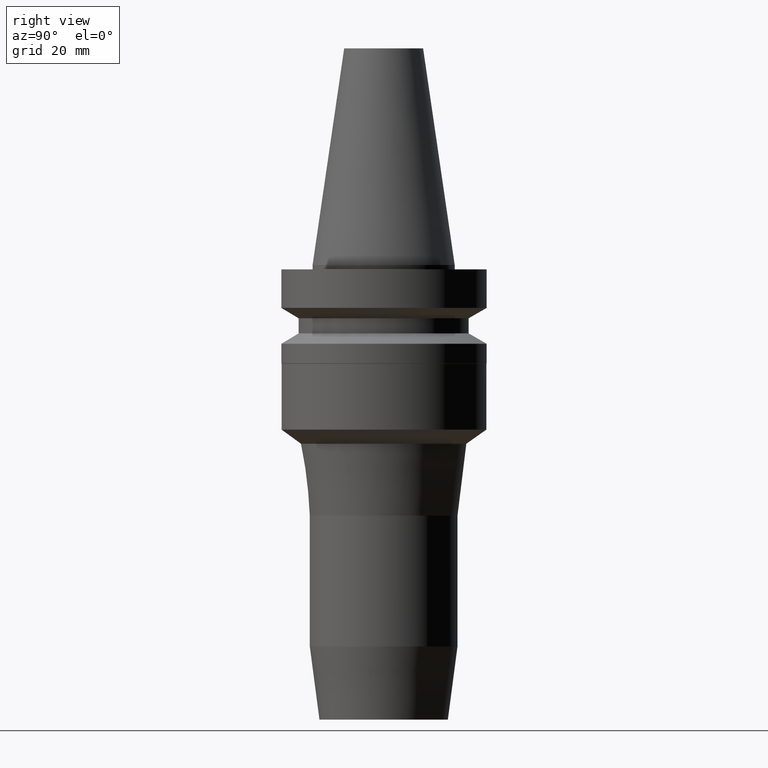
[diagram: clean part render]
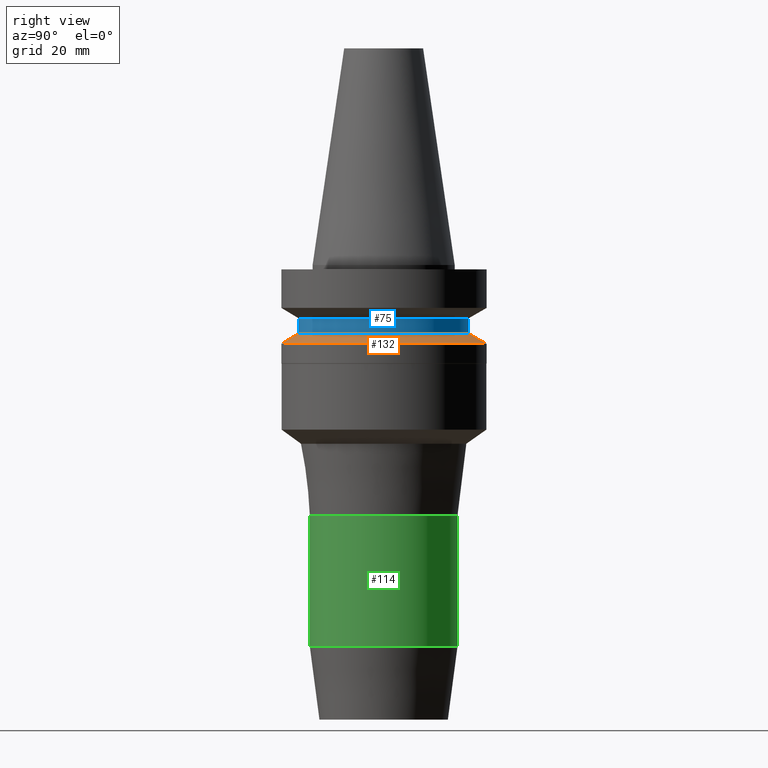
[diagram: same view with three faces highlighted in distinct colors, each labeled with its STEP entity id]
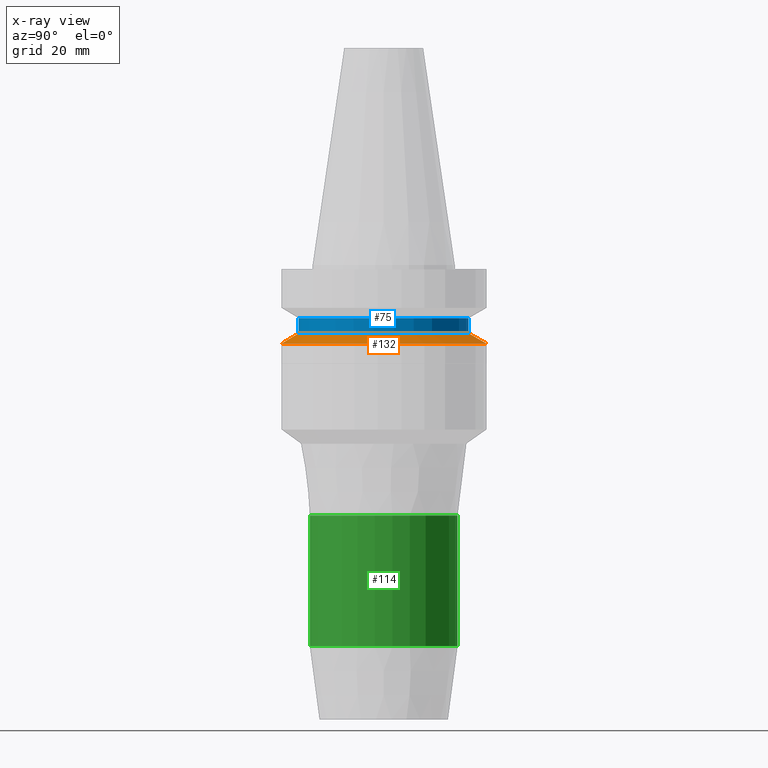
[diagram: x-ray of the same camera — body ghosted, the three highlighted faces saturated]
A machine part, right view with three faces highlighted in distinct colors.
The next image is the same camera in x-ray (body ghosted, the three faces saturated) — at least one of them is partly hidden behind the body in this view.
Their STEP definitions:

[orange] entity #132 — the highlighted conical surface has half-angle 60 deg.
#65=EDGE_CURVE('Unnamed[1]',#166,#166,#167,.T.);
#77=EDGE_CURVE('Unnamed[1]',#185,#185,#186,.T.);
#132=ADVANCED_FACE('Unnamed[1]',(#270,#271),#272,.T.);
#166=VERTEX_POINT('',#303);
#167=CIRCLE('',#304,23.0);
#185=VERTEX_POINT('',#327);
#186=CIRCLE('',#328,19.0);
#270=FACE_BOUND('',#432,.T.);
#271=FACE_BOUND('',#433,.T.);
#272=CONICAL_SURFACE('',#434,21.0,1.04719755058882);
#303=CARTESIAN_POINT('',(1.07768918324967E-015,23.0,-17.6));
#304=AXIS2_PLACEMENT_3D('',#456,#457,#458);
#327=CARTESIAN_POINT('',(9.36279151221199E-016,19.0,-15.29059892));
#328=AXIS2_PLACEMENT_3D('',#477,#478,#479);
#432=EDGE_LOOP('',(#571));
#433=EDGE_LOOP('',(#572));
#434=AXIS2_PLACEMENT_3D('',#573,#574,#575);
#456=CARTESIAN_POINT('',(1.07768918324967E-015,2.15537836649934E-015,-17.6));
#457=DIRECTION('',(6.12323399573677E-017,1.22464679914735E-016,-1.0));
#458=DIRECTION('',(-1.23259516440783E-032,1.0,1.22464679914735E-016));
#477=CARTESIAN_POINT('',(9.36279151221199E-016,1.8725583024424E-015,-15.29059892));
#478=DIRECTION('',(6.12323399573677E-017,1.22464679914735E-016,-1.0));
#479=DIRECTION('',(-1.23259516440783E-032,1.0,1.22464679914735E-016));
#571=ORIENTED_EDGE('',*,*,#65,.F.);
#572=ORIENTED_EDGE('',*,*,#77,.T.);
#573=CARTESIAN_POINT('',(1.00698416723543E-015,2.01396833447087E-015,-16.44529946));
#574=DIRECTION('',(6.12323399573677E-017,1.22464679914735E-016,-1.0));
#575=DIRECTION('',(-1.23259516440783E-032,1.0,1.22464679914735E-016));

[blue] entity #75 — the highlighted cylindrical surface (bore or boss wall) has radius 19 mm, axis along (0, 0, -1).
#75=ADVANCED_FACE('Unnamed[1]',(#181,#182),#183,.T.);
#77=EDGE_CURVE('Unnamed[1]',#185,#185,#186,.T.);
#87=EDGE_CURVE('Unnamed[1]',#201,#201,#202,.T.);
#181=FACE_BOUND('',#322,.T.);
#182=FACE_BOUND('',#323,.T.);
#183=CYLINDRICAL_SURFACE('',#324,19.0);
#185=VERTEX_POINT('',#327);
#186=CIRCLE('',#328,19.0);
#201=VERTEX_POINT('',#347);
#202=CIRCLE('',#348,19.0);
#322=EDGE_LOOP('',(#472));
#323=EDGE_LOOP('',(#473));
#324=AXIS2_PLACEMENT_3D('',#474,#475,#476);
#327=CARTESIAN_POINT('',(9.36279151221199E-016,19.0,-15.29059892));
#328=AXIS2_PLACEMENT_3D('',#477,#478,#479);
#347=CARTESIAN_POINT('',(7.29240495619202E-016,19.0,-11.90940108));
#348=AXIS2_PLACEMENT_3D('',#495,#496,#497);
#472=ORIENTED_EDGE('',*,*,#77,.F.);
#473=ORIENTED_EDGE('',*,*,#87,.T.);
#474=CARTESIAN_POINT('',(8.32759823420201E-016,1.6655196468404E-015,-13.6));
#475=DIRECTION('',(6.12323399573677E-017,1.22464679914735E-016,-1.0));
#476=DIRECTION('',(-1.23259516440783E-032,1.0,1.22464679914735E-016));
#477=CARTESIAN_POINT('',(9.36279151221199E-016,1.8725583024424E-015,-15.29059892));
#478=DIRECTION('',(6.12323399573677E-017,1.22464679914735E-016,-1.0));
#479=DIRECTION('',(-1.23259516440783E-032,1.0,1.22464679914735E-016));
#495=CARTESIAN_POINT('',(7.29240495619202E-016,1.4584809912384E-015,-11.90940108));
#496=DIRECTION('',(6.12323399573677E-017,1.22464679914735E-016,-1.0));
#497=DIRECTION('',(-1.23259516440783E-032,1.0,1.22464679914735E-016));

[green] entity #114 — the highlighted cylindrical surface (bore or boss wall) has radius 16.5 mm, axis along (0, 0, -1).
#56=EDGE_CURVE('Unnamed[1]',#153,#153,#154,.T.);
#58=EDGE_CURVE('Unnamed[1]',#156,#156,#157,.T.);
#114=ADVANCED_FACE('Unnamed[1]',(#241,#242),#243,.T.);
#153=VERTEX_POINT('',#286);
#154=CIRCLE('',#287,16.5000000000001);
#156=VERTEX_POINT('',#290);
#157=CIRCLE('',#291,16.4999999999999);
#241=FACE_BOUND('',#396,.T.);
#242=FACE_BOUND('',#397,.T.);
#243=CYLINDRICAL_SURFACE('',#398,16.5);
#286=CARTESIAN_POINT('',(5.2190726737765E-015,16.5000000000001,-85.2339250371654));
#287=AXIS2_PLACEMENT_3D('',#442,#443,#444);
#290=CARTESIAN_POINT('',(3.4303581490918E-015,16.4999999999999,-56.0220000000024));
#291=AXIS2_PLACEMENT_3D('',#445,#446,#447);
#396=EDGE_LOOP('',(#538));
#397=EDGE_LOOP('',(#539));
#398=AXIS2_PLACEMENT_3D('',#540,#541,#542);
#442=CARTESIAN_POINT('',(5.2190726737765E-015,1.0438145347553E-014,-85.2339250371654));
#443=DIRECTION('',(6.12323399573677E-017,1.22464679914735E-016,-1.0));
#444=DIRECTION('',(-1.23259516440783E-032,1.0,1.22464679914735E-016));
#445=CARTESIAN_POINT('',(3.4303581490918E-015,6.86071629818359E-015,-56.0220000000024));
#446=DIRECTION('',(6.12323399573677E-017,1.22464679914735E-016,-1.0));
#447=DIRECTION('',(-1.23259516440783E-032,1.0,1.22464679914735E-016));
#538=ORIENTED_EDGE('',*,*,#56,.F.);
#539=ORIENTED_EDGE('',*,*,#58,.T.);
#540=CARTESIAN_POINT('',(4.32471541143415E-015,8.64943082286829E-015,-70.6279625185839));
#541=DIRECTION('',(6.12323399573677E-017,1.22464679914735E-016,-1.0));
#542=DIRECTION('',(-1.23259516440783E-032,1.0,1.22464679914735E-016));